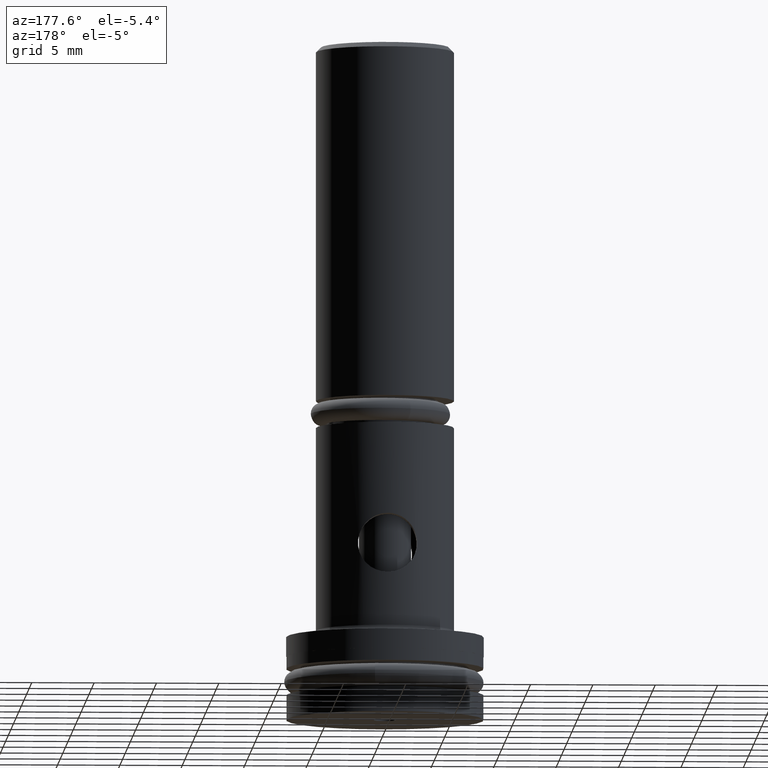
[diagram: clean part render]
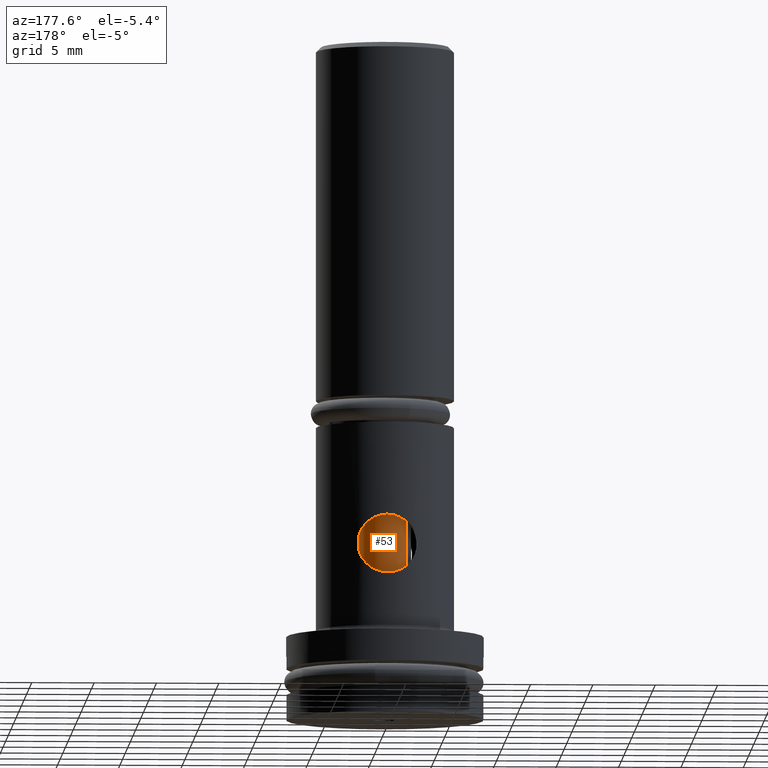
[diagram: same view with one face highlighted and labeled with its STEP entity id]
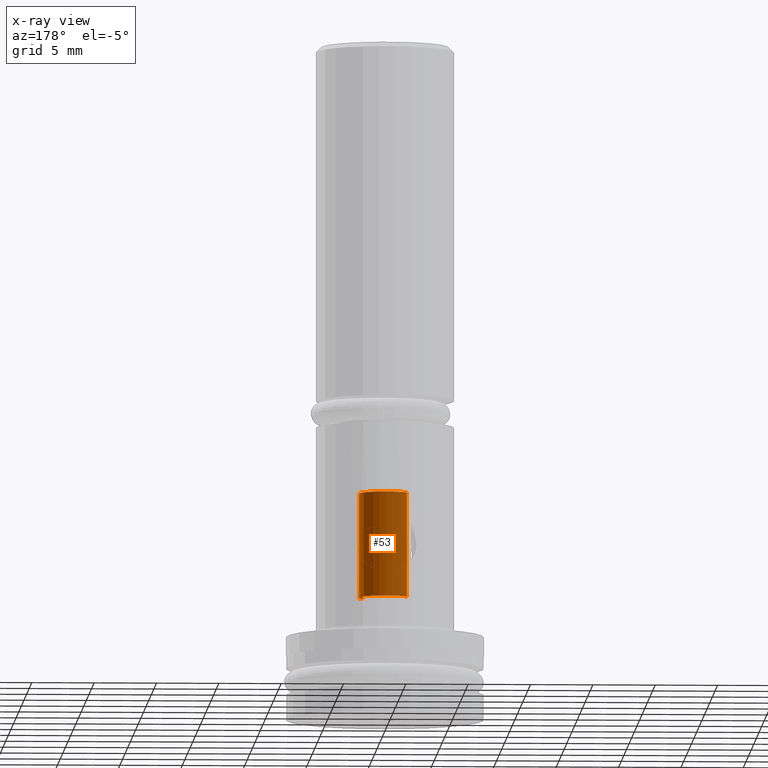
[diagram: x-ray of the same camera — body ghosted, the highlighted face saturated]
A machine part, auxiliary view. The second image highlights one B-rep face of the part: STEP entity #53.
The next image is the same camera in x-ray: the body ghosted, the highlighted face saturated — about 0% of this face is hidden behind the body in this view.
In plain terms, the highlighted cylindrical surface (edge-blend (fillet) strip) has radius 2.0955 mm, axis along (-0, 0, -1).
Its self-contained STEP definition (entity closure, byte-faithful):
#53 = ADVANCED_FACE ( 'NONE', ( #1311 ), #1312, .T. ) ;
#722 = VERTEX_POINT ( 'NONE', #2124 ) ;
#726 = VERTEX_POINT ( 'NONE', #2127 ) ;
#768 = VERTEX_POINT ( 'NONE', #2164 ) ;
#816 = VERTEX_POINT ( 'NONE', #2191 ) ;
#851 = EDGE_CURVE ( 'NONE', #726, #816, #1338, .T. ) ;
#852 = EDGE_CURVE ( 'NONE', #722, #768, #1341, .T. ) ;
#1147 = EDGE_CURVE ( 'NONE', #768, #816, #1350, .T. ) ;
#1156 = EDGE_CURVE ( 'NONE', #726, #722, #1361, .T. ) ;
#1208 = EDGE_LOOP ( 'NONE', ( #1657, #1658, #1659, #1660 ) ) ;
#1311 = FACE_OUTER_BOUND ( 'NONE', #1208, .T. ) ;
#1312 = CYLINDRICAL_SURFACE ( 'NONE', #1844, 0.08249999999999992100 ) ;
#1338 = LINE ( 'NONE', #2255, #1340 ) ;
#1340 = VECTOR ( 'NONE', #2256, 39.37007874015748100 ) ;
#1341 = LINE ( 'NONE', #2257, #1342 ) ;
#1342 = VECTOR ( 'NONE', #2258, 39.37007874015748100 ) ;
#1350 = CIRCLE ( 'NONE', #1863, 0.08249999999999993400 ) ;
#1361 = CIRCLE ( 'NONE', #1871, 0.08249999999999990700 ) ;
#1657 = ORIENTED_EDGE ( 'NONE', *, *, #1156, .F. ) ;
#1658 = ORIENTED_EDGE ( 'NONE', *, *, #851, .T. ) ;
#1659 = ORIENTED_EDGE ( 'NONE', *, *, #1147, .F. ) ;
#1660 = ORIENTED_EDGE ( 'NONE', *, *, #852, .F. ) ;
#1844 = AXIS2_PLACEMENT_3D ( 'NONE', #2091, #2092, #2093 ) ;
#1863 = AXIS2_PLACEMENT_3D ( 'NONE', #2272, #2273, #2274 ) ;
#1871 = AXIS2_PLACEMENT_3D ( 'NONE', #2298, #2299, #2300 ) ;
#2091 = CARTESIAN_POINT ( 'NONE',  ( 0.0000000000000000000, 0.0000000000000000000, -0.2928196444417974200 ) ) ;
#2092 = DIRECTION ( 'NONE',  ( -0.0000000000000000000, -0.0000000000000000000, -1.000000000000000000 ) ) ;
#2093 = DIRECTION ( 'NONE',  ( -1.000000000000000000, 0.0000000000000000000, 0.0000000000000000000 ) ) ;
#2124 = CARTESIAN_POINT ( 'NONE',  ( -0.08249999999999990700, 0.0000000000000000000, 0.5169999999999999000 ) ) ;
#2127 = CARTESIAN_POINT ( 'NONE',  ( 0.08249999999999990700, 1.010333609296565400E-017, 0.5169999999999999000 ) ) ;
#2164 = CARTESIAN_POINT ( 'NONE',  ( -0.08249999999999993400, 0.0000000000000000000, 0.1870000000000000000 ) ) ;
#2191 = CARTESIAN_POINT ( 'NONE',  ( 0.08249999999999993400, 1.010333609296565700E-017, 0.1870000000000000000 ) ) ;
#2255 = CARTESIAN_POINT ( 'NONE',  ( 0.08249999999999992100, 1.010333609296565400E-017, -0.2928196444417974200 ) ) ;
#2256 = DIRECTION ( 'NONE',  ( -0.0000000000000000000, -0.0000000000000000000, -1.000000000000000000 ) ) ;
#2257 = CARTESIAN_POINT ( 'NONE',  ( -0.08249999999999992100, 0.0000000000000000000, -0.2928196444417974200 ) ) ;
#2258 = DIRECTION ( 'NONE',  ( -0.0000000000000000000, -0.0000000000000000000, -1.000000000000000000 ) ) ;
#2272 = CARTESIAN_POINT ( 'NONE',  ( 0.0000000000000000000, 0.0000000000000000000, 0.1870000000000000000 ) ) ;
#2273 = DIRECTION ( 'NONE',  ( -0.0000000000000000000, -0.0000000000000000000, -1.000000000000000000 ) ) ;
#2274 = DIRECTION ( 'NONE',  ( -1.000000000000000000, 0.0000000000000000000, 0.0000000000000000000 ) ) ;
#2298 = CARTESIAN_POINT ( 'NONE',  ( 0.0000000000000000000, 0.0000000000000000000, 0.5169999999999999000 ) ) ;
#2299 = DIRECTION ( 'NONE',  ( 0.0000000000000000000, 0.0000000000000000000, 1.000000000000000000 ) ) ;
#2300 = DIRECTION ( 'NONE',  ( 1.000000000000000000, 0.0000000000000000000, 0.0000000000000000000 ) ) ;